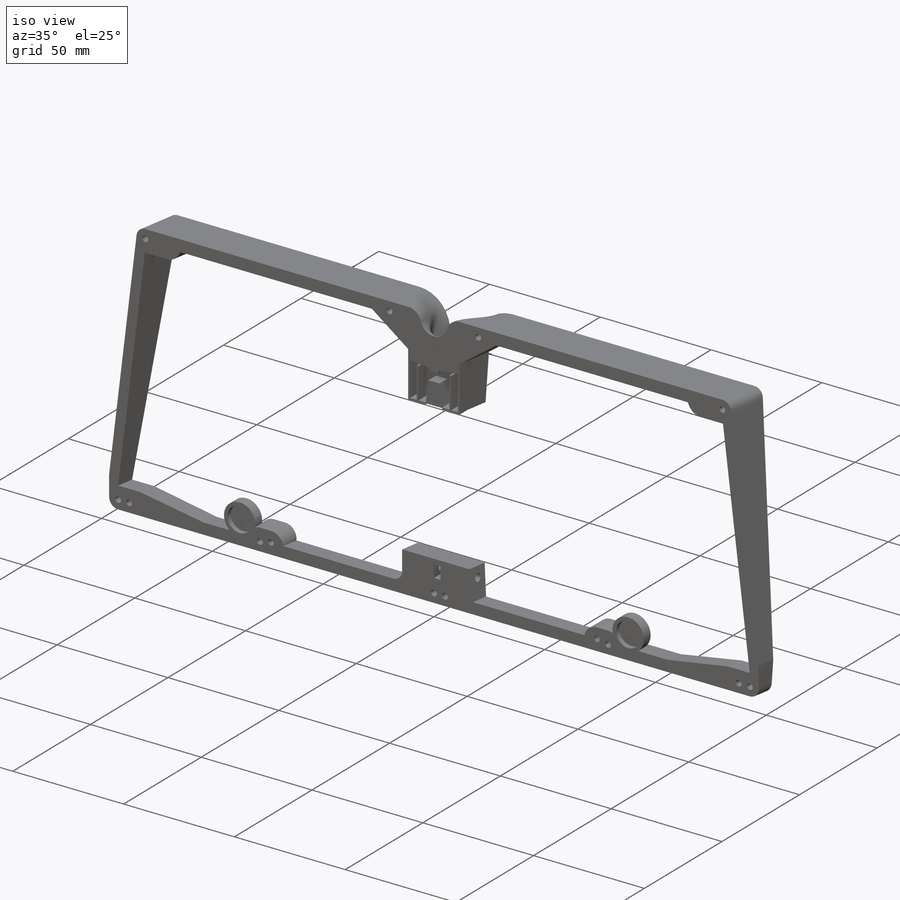
[diagram: iso view]
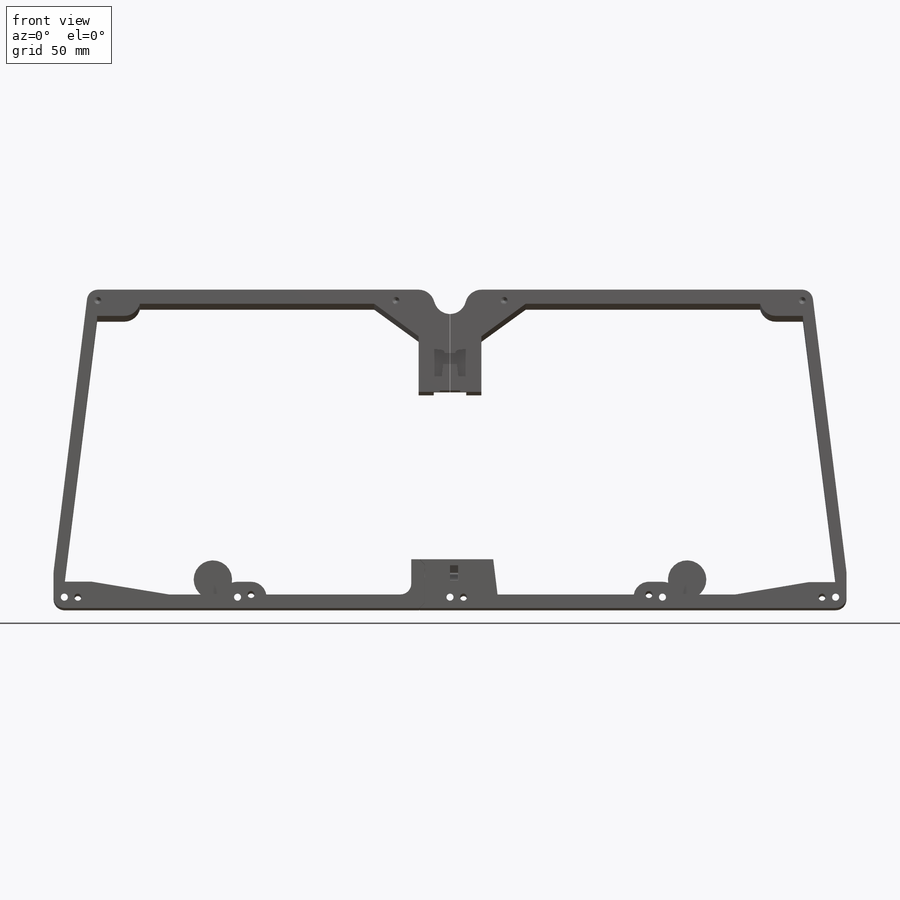
[diagram: front view]
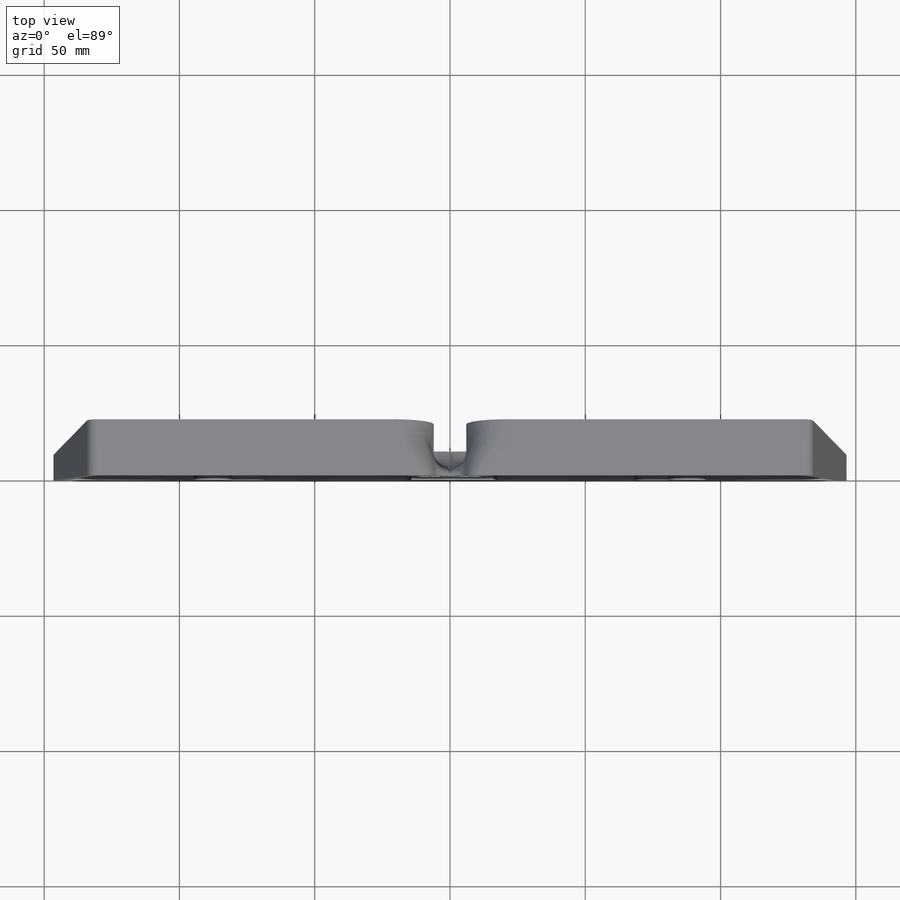
[diagram: top view]
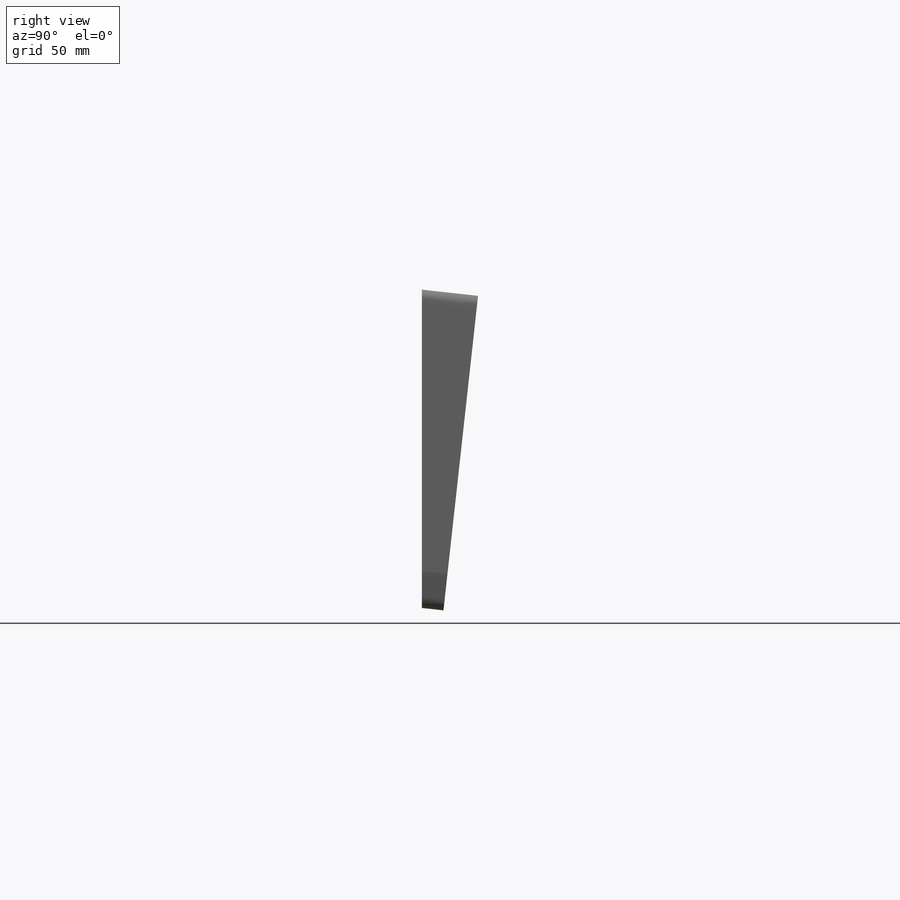
[diagram: right view]
SOLIDWORKS PART (.sldprt)
format: sldprt  version: not decoded by parser v0  size: 2,036,736 bytes
history: native  units: mm
features: sketch x18, cut_extrude x4, plane x3, extrude x3, hole x2, material x1 (+11 scaffold rows collapsed)
feature tree (42):
  scaffold x11  (default folders/planes/origin — collapsed)
  material  "Material <not specified>"
  plane  "Plane1"
  plane  "pl Vertical"
  plane  "Plane3"  Offset=18mm
  sketch  "Sketch1"  dims[c1.D3=~9.250853mm c1.D6=~15.213448mm c1.D10=6.0mm c1.D11=6.0mm c1.D13=4.0mm c1.D15=5.7mm c1.D17=5.7mm c1.D18=5.7mm c1.D2=~3.234138mm c2.D18=6.0mm c2.D19=~14.308622mm c2.D20=5.7mm c2.D22=~11.329289mm c2.D23=5.7mm c2.D1=~79.35051mm c2.D2=36.0mm c2.D3=4.0mm c2.D4=5.5mm c2.D5=~98.479527mm c3.D5=~0.587962deg c4.D5=5.0mm c4.D6=~9.925462mm c5.D6=~0.094161deg c6.D6=1.0mm c6.D7=14.0mm c6.D8=5.0mm c6.D9=1.0mm c6.D10=~2.049381mm c6.D11=12.0mm c7.D9=3.0mm c7.D11=5.0mm c7.D12=2.0mm c7.D13=~30.293042mm c7.D14=5.0mm c7.D15=~0.654647mm c7.D17=20.0mm c7.D18=~2.156354mm c7.D2=~1.482907mm c8.D2=90.0deg c9.D2=15.0mm c9.D18=~5.000833mm c10.D2=10.0mm c10.D19=5.0mm c10.D20=10.0mm c10.D21=10.0mm c10.D22=5.0mm c10.D23=~50.352189mm c10.D1=0.0mm c10.D14=0.05mm c10.D15=0.025mm c10.D16=0.025mm]
  sketch  "Sketch2"  dims[c1.D2=~2.696403mm c1.D4=4.0mm c1.D5=~13.449753mm c1.D7=15.0mm c2.D5=~5.752221mm c2.D8=6.0mm c2.D9=~11.783098mm c2.D10=~10.344914mm c2.D11=~5.611595mm c2.D2=0.05mm c2.D3=0.05mm c3.D5=38.0mm c3.D6=12.0mm c3.D7=~153.588667mm c4.D5=1.0mm c4.D8=~260.415709mm c5.D5=10.0mm c5.D9=5.0mm c5.D10=5.0mm c5.D11=10.0mm c5.D12=10.0mm c5.D1=0.0mm]
  sketch  "3DSketch1"  dims[c1.D1=0.5mm c2.D1=0.5mm c3.D1=~21.949332mm c4.D1=~225.884589mm c5.D1=~21.711078mm c6.D1=92.2293mm c7.D1=~14.889145mm c8.D1=~56.19451mm c9.D1=~14.239076mm c10.D1=~59.134602mm c11.D1=~13.967757mm c12.D1=~33.969868mm c13.D1=~13.967757mm c14.D1=~25.758544mm c15.D1=~13.967757mm c16.D1=~13.994238mm c17.D1=~14.239076mm c18.D1=~96.141327mm c19.D1=~21.711078mm c20.D1=~14.061272mm c21.D1=~21.949332mm c22.D1=~27.361584mm c23.D1=~21.952492mm c24.D1=~23.279533mm c25.D1=~21.950857mm c26.D1=~14.93515mm c27.D1=~21.597051mm c28.D1=~23.298614mm c29.D1=~21.291728mm c30.D1=~14.628227mm c31.D1=~2.997284mm c32.D1=~14.306906mm c33.D1=~14.306906mm c34.D1=~14.578228mm c35.D1=~15.188693mm c36.D1=~14.306906mm c37.D1=~15.188695mm c38.D1=~15.188695mm c39.D1=~15.058653mm c40.D1=~15.053034mm c41.D1=~13.967757mm c42.D1=~13.967757mm c43.D1=~14.103417mm c44.D1=~14.097798mm c45.D1=~15.188693mm c46.D1=~14.306906mm c47.D1=~14.306906mm c48.D1=~14.306906mm c49.D1=~14.614762mm c50.D1=~21.291728mm c51.D1=~21.597051mm c52.D1=~21.597051mm c53.D1=~20.864055mm c54.D1=~21.597051mm c55.D1=~20.864055mm c56.D1=~19.618345mm c57.D1=~19.618345mm c58.D1=~4.150513mm c59.D1=~29.40583mm c60.D1=~5.458063mm c61.D1=~22.169386mm c62.D1=~22.169386mm c63.D1=~23.859804mm c64.D1=~9.587612mm c65.D1=~24.498376mm c66.D1=~16.275282mm c67.D1=~3.541235mm c68.D1=~2.905968mm c69.D1=~1.969891mm c70.D1=~2.974424mm c71.D1=~1.946011mm c72.D1=~1.279925mm c73.D1=~1.729697mm c74.D1=~1.811143mm c75.D1=~2.218122mm c76.D1=~7.572112mm c77.D1=~9.262743mm c78.D1=~6.918503mm c79.D1=~7.615659mm c80.D1=~4.776251mm c81.D1=~3.629259mm c82.D1=~2.839443mm c83.D1=~3.882728mm c84.D1=~2.247425mm c85.D1=~2.751369mm c86.D1=~7.548865mm c87.D1=~8.371821mm c88.D1=~6.960888mm c89.D1=~38.052286mm c90.D1=~4.58078mm c91.D1=~41.889859mm c92.D1=~9.678926mm c93.D1=~5.528479mm c94.D1=~8.541298mm c94.D2=~10.738726mm c94.D3=11.0mm c95.D2=11.0mm c95.D4=11.0mm c95.D3=11.0mm c96.D4=11.0mm c96.D3=~11.620727mm c96.D2=11.0mm c97.D4=~3.882728mm c97.D2=~10.998069mm c97.D3=~4.26007mm c98.D3=~6.855227mm c99.D3=~6.979762mm c100.D3=~5.358529mm c101.D3=~31.698341mm c102.D3=~4.890847mm c103.D3=~6.182471mm c104.D3=~13.695767mm c105.D3=~16.832925mm c106.D3=~4.739575mm c107.D3=~4.506637mm c108.D3=~2.079411mm c109.D3=~3.793535mm c110.D3=~10.770472mm c111.D3=~11.51461mm c111.D1=~20.936419mm c112.D1=~20.937262mm c113.D1=~9.679276mm c114.D1=~11.784742mm c115.D1=~7.078848mm c116.D1=~9.15492mm c117.D1=~5.991434mm c118.D1=~9.169895mm c119.D1=~9.124518mm c120.D1=~12.236102mm c121.D1=~3.125455mm c121.D2=10.0mm c121.D3=~3.443559mm c122.D3=~2.845207mm c123.D3=~1.802747mm c124.D3=~1.866168mm c125.D3=~1.933477mm c126.D3=~16.90583mm c127.D3=~1.920354mm c128.D3=~7.095264mm c128.D1=5.0mm c128.D4=~7.196725mm c129.D4=~3.484707mm c129.D1=~20.727791mm c130.D1=~20.727791mm c131.D1=~19.376606mm c132.D1=~19.376606mm c133.D1=~14.368788mm c134.D1=~12.844068mm c135.D1=~11.852541mm c136.D1=~11.887713mm c137.D1=~11.01441mm c138.D1=~12.628799mm c139.D1=~7.616897mm c140.D1=~3.893774mm c141.D1=~20.305725mm c142.D1=~43.267278mm c143.D1=~20.873939mm c144.D1=~57.682985mm c145.D1=~20.305725mm c146.D1=~162.029551mm c147.D1=~8.547033mm c148.D1=~8.547033mm c149.D1=~13.819341mm]
  sketch  "Loft2"
  sketch  "Sketch2<4>"
  sketch  "Sketch1<7>"
  sketch  "3DSketch1<4>"
  sketch  "Sketch7"  dims[c1.D1=~8.068395mm c1.D2=~15.235671mm c2.D1=0.0mm]
  cut_extrude  "Cut-Extrude3"  [1 undecoded]
  sketch  "Sketch8"  dims[D1=4.0mm D2=0.0mm]
  cut_extrude  "Cut-Extrude4"  [1 undecoded]
  sketch  "Sketch9"  dims[c1.D4=~9.401523mm c1.D6=14.0mm c1.D7=~3.523676mm c1.D1=0.8mm c1.D2=0.8mm c1.D3=0.8mm c2.D4=7.0mm c2.D5=14.0mm c2.D1=0.0mm c2.D2=0.0mm c2.D3=0.8mm c3.D4=0.8mm c3.D5=0.8mm]
  extrude  "extSupports"  [1 undecoded]
  sketch  "Sketch10"  dims[c1.D1=~14.758521mm c1.D2=~15.723905mm c1.D3=11.0mm c2.D1=1.6mm c2.D2=1.6mm c3.D1=~16.087823mm]
  extrude  "extMagnetRing(for dia10x2mm magnet)"  Depth=2.2mm
  sketch  "Sketch11"  dims[D1=0.0mm D2=0.0mm D3=0.0mm D4=0.0mm]
  extrude  "extMagnetCap"  Depth=2.2mm
  hole  "holes Top Mount"  Diameter=2.6mm Depth=15mm
  sketch  "Sketch13"
  sketch  "Sketch12"  dims[hole-wizard template sketch: 46 standard entries collapsed; hole parameters kept: c15.Hole Dia.=2.6mm c15.Hole Depth=15.0mm c15.D3=~14.816244mm c15.Drill Angle=118.0deg]
  sketch  "Sketch15"  dims[D1=~8.980016mm]
  cut_extrude  "cut M3 screw hole"  [1 undecoded]
  sketch  "Sketch16"  dims[D1=5.6mm D2=~10.458675mm]
  cut_extrude  "cut M3 nut slot"  Depth=3mm
  hole  "holes Bottom mount"  Diameter=2.6mm Depth=15mm
  sketch  "Sketch18"  dims[D1=5.0mm D2=5.0mm D3=9.0mm D4=30.0mm D5=5.0mm]
  sketch  "Sketch17"  dims[hole-wizard template sketch: 46 standard entries collapsed; hole parameters kept: c15.Hole Dia.=2.6mm c15.Hole Depth=15.0mm c15.D3=~14.816244mm c15.Drill Angle=118.0deg]
decode coverage: 18 of 27 modeling features carry decoded parameters
note: ~ marks probable driven/reference dimensions
note: 4 parameter values undecoded
summary: no parameter record found for 4 features
note: suppression state not decoded; provenance and decode notes live in map.json
